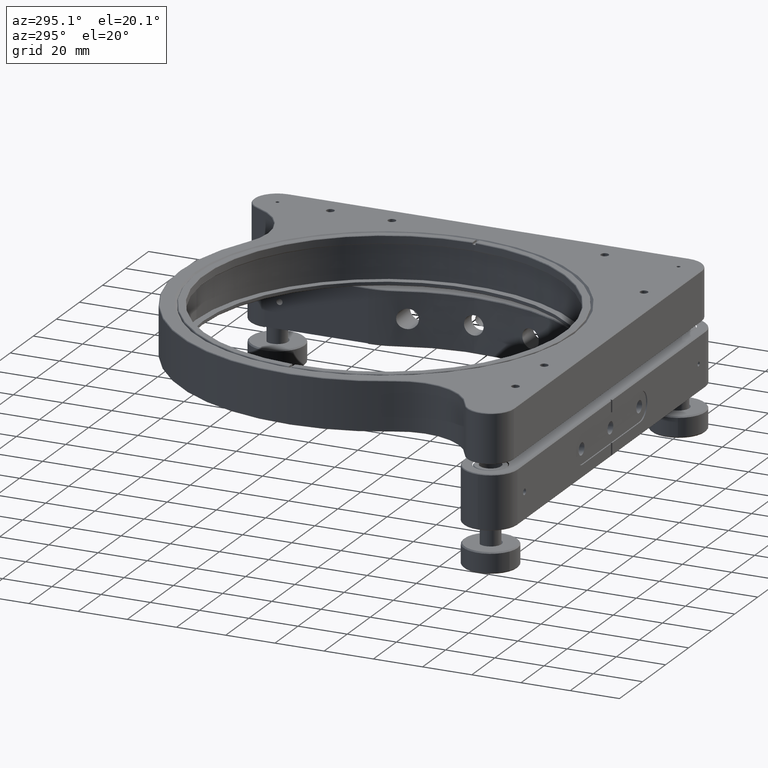
[diagram: clean part render]
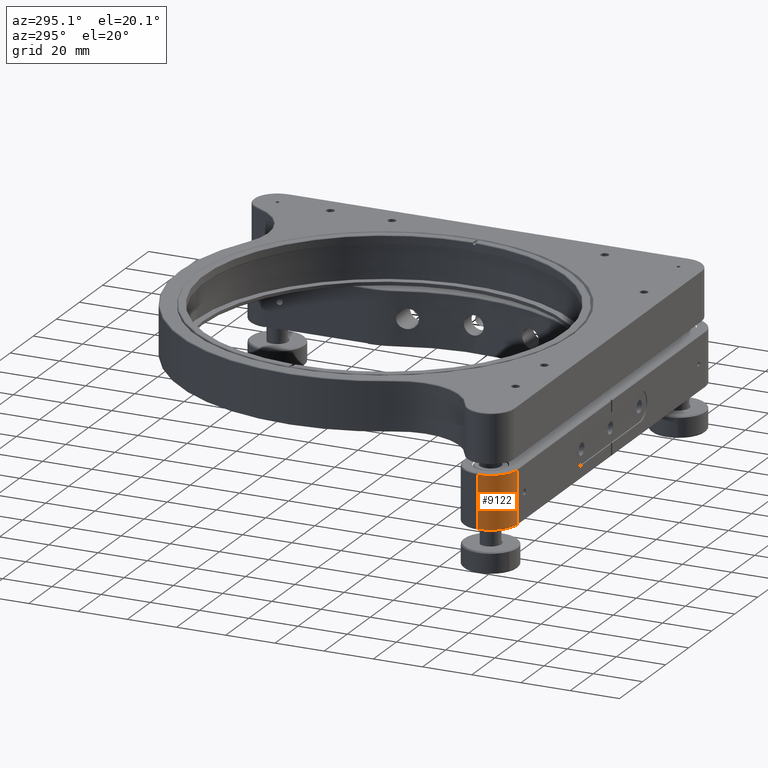
[diagram: same view with one face highlighted and labeled with its STEP entity id]
A machine part, auxiliary view. The second image highlights one B-rep face of the part: STEP entity #9122.
In plain terms, the highlighted cylindrical surface (edge-blend (fillet) strip) has radius 11 mm, axis along (-0, 0, -1).
Its self-contained STEP definition (entity closure, byte-faithful):
#105 = EDGE_CURVE ( 'NONE', #14422, #7536, #5973, .T. ) ;
#205 = DIRECTION ( 'NONE',  ( -0.000000000000000000, 0.000000000000000000, -1.000000000000000000 ) ) ;
#252 = AXIS2_PLACEMENT_3D ( 'NONE', #9092, #205, #3241 ) ;
#301 = FACE_OUTER_BOUND ( 'NONE', #11431, .T. ) ;
#1743 = DIRECTION ( 'NONE',  ( 1.000000000000000000, 0.000000000000000000, 0.000000000000000000 ) ) ;
#2266 = DIRECTION ( 'NONE',  ( 0.000000000000000000, 0.000000000000000000, 1.000000000000000000 ) ) ;
#3241 = DIRECTION ( 'NONE',  ( -1.000000000000000000, 0.000000000000000000, 0.000000000000000000 ) ) ;
#3446 = ORIENTED_EDGE ( 'NONE', *, *, #12659, .T. ) ;
#4057 = VERTEX_POINT ( 'NONE', #18184 ) ;
#4322 = VECTOR ( 'NONE', #13339, 1000.000000000000000 ) ;
#5160 = ORIENTED_EDGE ( 'NONE', *, *, #6924, .F. ) ;
#5355 = ORIENTED_EDGE ( 'NONE', *, *, #15768, .T. ) ;
#5973 = LINE ( 'NONE', #18143, #17369 ) ;
#6394 = CARTESIAN_POINT ( 'NONE',  ( -92.50000000000000000, -81.49999999999998579, -10.69999999999992113 ) ) ;
#6423 = CARTESIAN_POINT ( 'NONE',  ( -92.50000000000000000, -81.49999999999998579, 10.70000000000000462 ) ) ;
#6825 = VERTEX_POINT ( 'NONE', #11551 ) ;
#6924 = EDGE_CURVE ( 'NONE', #6825, #4057, #18242, .T. ) ;
#7499 = CARTESIAN_POINT ( 'NONE',  ( -81.50000000000000000, -92.50000000000000000, 11.00000000000000000 ) ) ;
#7536 = VERTEX_POINT ( 'NONE', #6423 ) ;
#9092 = CARTESIAN_POINT ( 'NONE',  ( -81.50000000000000000, -81.50000000000000000, 11.00000000000000000 ) ) ;
#9122 = ADVANCED_FACE ( 'NONE', ( #301 ), #12313, .T. ) ;
#11431 = EDGE_LOOP ( 'NONE', ( #5160, #3446, #13432, #5355 ) ) ;
#11551 = CARTESIAN_POINT ( 'NONE',  ( -81.50000000000000000, -92.50000000000000000, 10.70000000000000462 ) ) ;
#11937 = CIRCLE ( 'NONE', #15454, 10.99999999999999645 ) ;
#12313 = CYLINDRICAL_SURFACE ( 'NONE', #252, 10.99999999999999645 ) ;
#12659 = EDGE_CURVE ( 'NONE', #6825, #7536, #17826, .T. ) ;
#13025 = AXIS2_PLACEMENT_3D ( 'NONE', #17136, #18633, #1743 ) ;
#13339 = DIRECTION ( 'NONE',  ( -0.000000000000000000, 0.000000000000000000, -1.000000000000000000 ) ) ;
#13432 = ORIENTED_EDGE ( 'NONE', *, *, #105, .F. ) ;
#14422 = VERTEX_POINT ( 'NONE', #6394 ) ;
#14442 = DIRECTION ( 'NONE',  ( 1.000000000000000000, 0.000000000000000000, 0.000000000000000000 ) ) ;
#15454 = AXIS2_PLACEMENT_3D ( 'NONE', #16042, #2266, #14442 ) ;
#15768 = EDGE_CURVE ( 'NONE', #14422, #4057, #11937, .T. ) ;
#16042 = CARTESIAN_POINT ( 'NONE',  ( -81.50000000000000000, -81.50000000000000000, -10.69999999999992113 ) ) ;
#16838 = DIRECTION ( 'NONE',  ( 0.000000000000000000, -0.000000000000000000, 1.000000000000000000 ) ) ;
#17136 = CARTESIAN_POINT ( 'NONE',  ( -81.50000000000000000, -81.50000000000000000, 10.70000000000000462 ) ) ;
#17369 = VECTOR ( 'NONE', #16838, 1000.000000000000000 ) ;
#17826 = CIRCLE ( 'NONE', #13025, 10.99999999999999645 ) ;
#18143 = CARTESIAN_POINT ( 'NONE',  ( -92.50000000000000000, -81.49999999999998579, 11.00000000000000000 ) ) ;
#18184 = CARTESIAN_POINT ( 'NONE',  ( -81.50000000000000000, -92.50000000000000000, -10.69999999999992113 ) ) ;
#18242 = LINE ( 'NONE', #7499, #4322 ) ;
#18633 = DIRECTION ( 'NONE',  ( 0.000000000000000000, 0.000000000000000000, -1.000000000000000000 ) ) ;